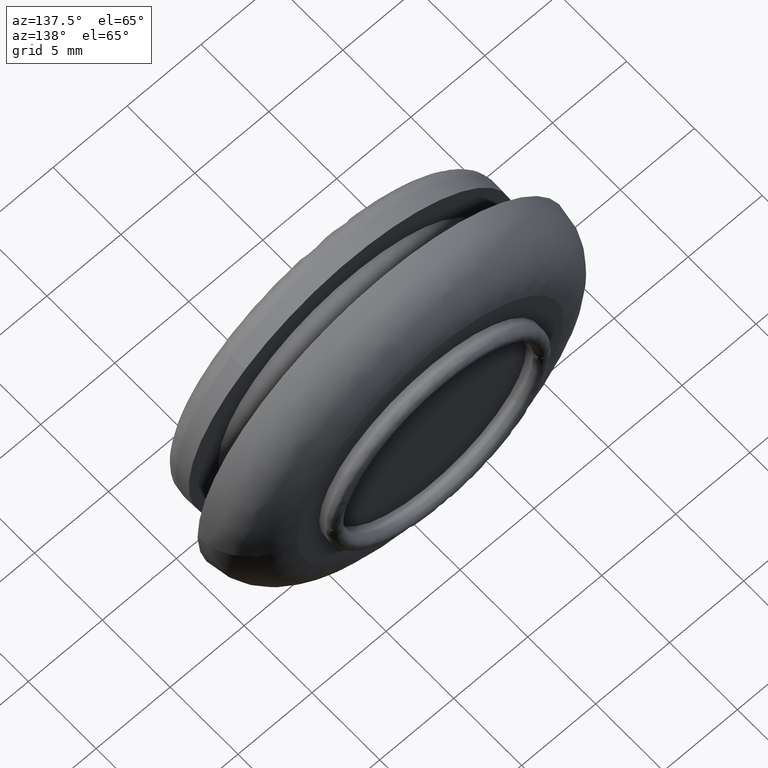
[diagram: clean part render]
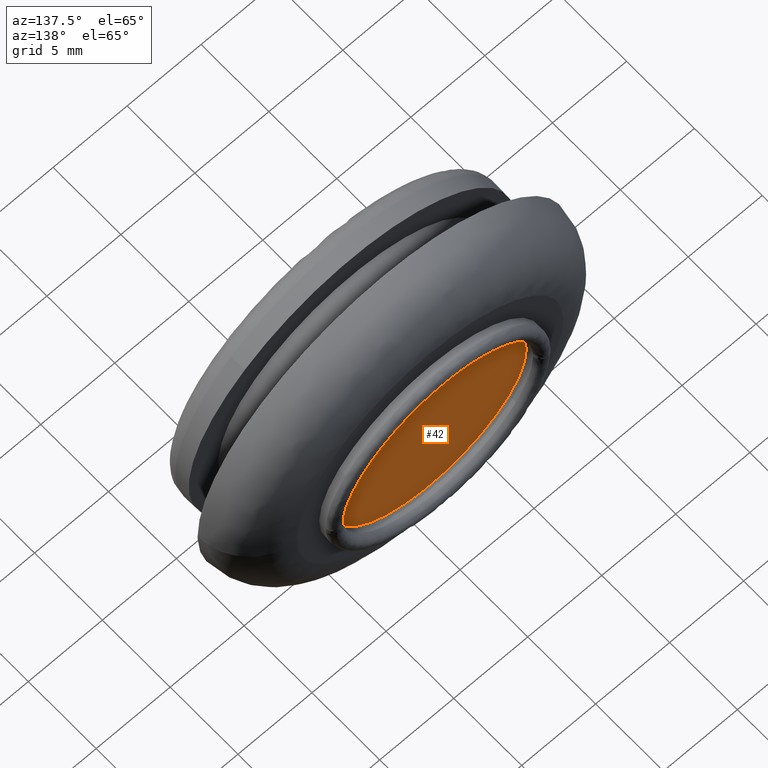
[diagram: same view with one face highlighted and labeled with its STEP entity id]
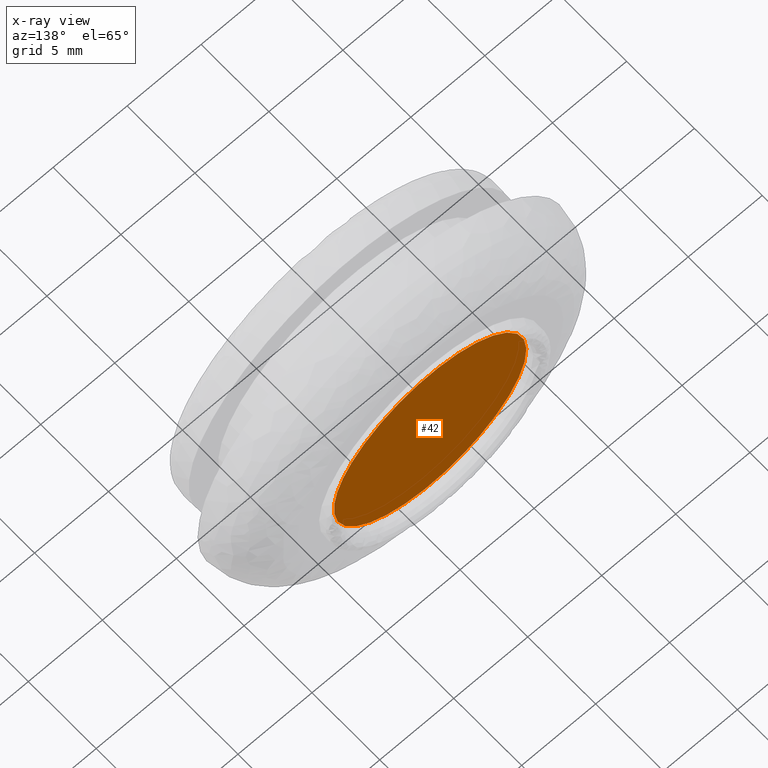
[diagram: x-ray of the same camera — body ghosted, the highlighted face saturated]
A machine part, auxiliary view. The second image highlights one B-rep face of the part: STEP entity #42.
The next image is the same camera in x-ray: the body ghosted, the highlighted face saturated — about 0% of this face is hidden behind the body in this view.
In plain terms, the highlighted planar face has unit normal (0, -1, 0).
Its self-contained STEP definition (entity closure, byte-faithful):
#42=ADVANCED_FACE('',(#85),#84,.F.);
#84=PLANE('',#301);
#85=FACE_OUTER_BOUND('',#302,.T.);
#298=CARTESIAN_POINT('',(-1.49922400416E+001,7.80000000000E+000,1.29583684106E+001));
#299=DIRECTION('',(0.00000000000E+000,-1.00000000000E+000,0.00000000000E+000));
#300=DIRECTION('',(0.00000000000E+000,0.00000000000E+000,-1.00000000000E+000));
#301=AXIS2_PLACEMENT_3D('',#298,#299,#300);
#302=EDGE_LOOP('',(#560,#561,#562));
#560=ORIENTED_EDGE('',*,*,#700,.F.);
#561=ORIENTED_EDGE('',*,*,#701,.F.);
#562=ORIENTED_EDGE('',*,*,#702,.F.);
#700=EDGE_CURVE('',#854,#855,#856,.T.);
#701=EDGE_CURVE('',#862,#854,#863,.T.);
#702=EDGE_CURVE('',#855,#862,#869,.T.);
#854=VERTEX_POINT('',#1300);
#855=VERTEX_POINT('',#1301);
#856=CIRCLE('',#1305,6.49999751834E+000);
#862=VERTEX_POINT('',#1306);
#863=CIRCLE('',#1310,6.49999751834E+000);
#869=CIRCLE('',#1314,6.49999751834E+000);
#1300=CARTESIAN_POINT('',(-5.33689511631E+000,7.80000000000E+000,-3.71045780901E+000));
#1301=CARTESIAN_POINT('',(6.47996081965E+000,7.80000000000E+000,-5.09976710987E-001));
#1302=CARTESIAN_POINT('',(2.51758592196E-007,7.80000000000E+000,2.48166025862E-006));
#1303=DIRECTION('',(-1.53558588519E-016,-1.00000000000E+000,-1.85023476798E-017));
#1304=DIRECTION('',(9.96917391063E-001,-1.51633563452E-016,-7.84583672852E-002));
#1305=AXIS2_PLACEMENT_3D('',#1302,#1303,#1304);
#1306=CARTESIAN_POINT('',(5.33614603173E+000,7.80000000000E+000,3.71154070096E+000));
#1307=CARTESIAN_POINT('',(2.51758592196E-007,7.80000000000E+000,2.48166025862E-006));
#1308=DIRECTION('',(-1.53558588519E-016,-1.00000000000E+000,-1.85023476798E-017));
#1309=DIRECTION('',(9.96917391063E-001,-1.51633563452E-016,-7.84583672852E-002));
#1310=AXIS2_PLACEMENT_3D('',#1307,#1308,#1309);
#1311=CARTESIAN_POINT('',(2.51758592196E-007,7.80000000000E+000,2.48166025862E-006));
#1312=DIRECTION('',(-1.53558588519E-016,-1.00000000000E+000,-1.85023476798E-017));
#1313=DIRECTION('',(9.96917391063E-001,-1.51633563452E-016,-7.84583672852E-002));
#1314=AXIS2_PLACEMENT_3D('',#1311,#1312,#1313);